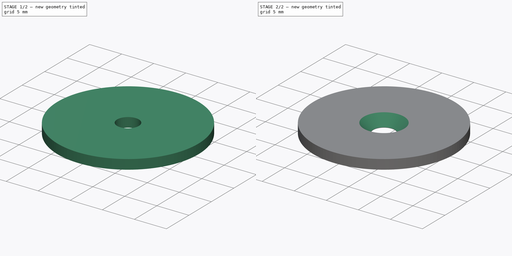
[diagram: build sequence overview — one tinted view per stage of 2, left to right]
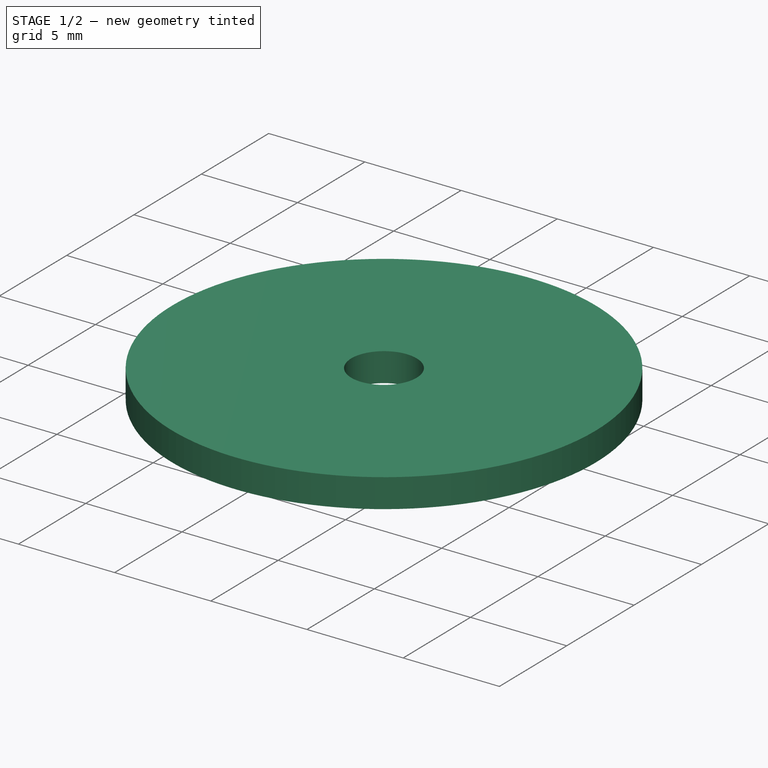
[diagram: stage 1 of 2 — iso view after this stage's code; geometry added in this stage tinted green]
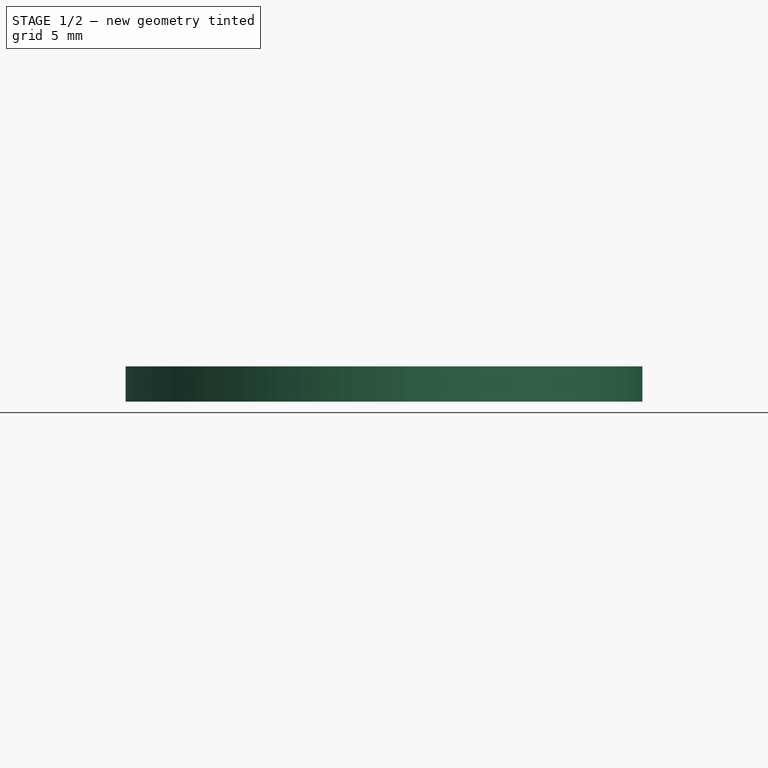
[diagram: stage 1 of 2 — front view after this stage's code; geometry added in this stage tinted green]
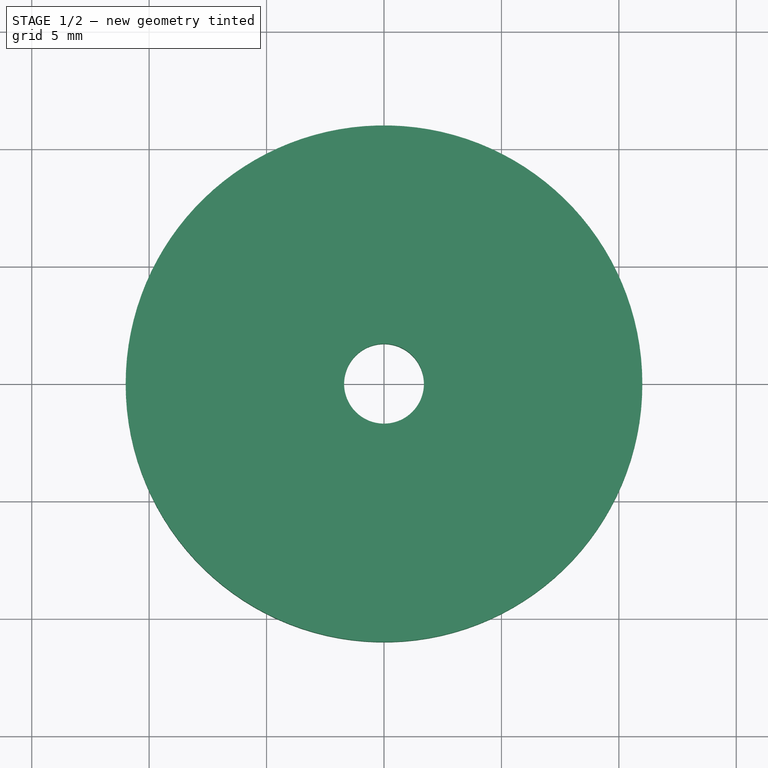
[diagram: stage 1 of 2 — top view after this stage's code; geometry added in this stage tinted green]
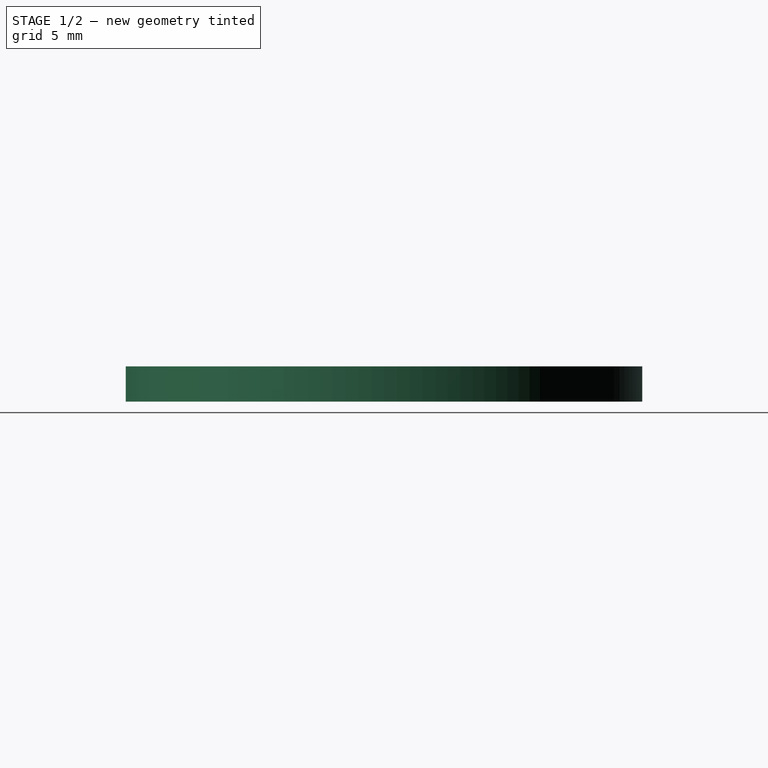
[diagram: stage 1 of 2 — right view after this stage's code; geometry added in this stage tinted green]
FCSTD DOCUMENT  (FreeCAD 0.17R12018 (Git))
Label: bed_leveling_washer_v2.0_PP-MP0082_revA
License: All rights reserved
LicenseURL: http://en.wikipedia.org/wiki/All_rights_reserved
objects: Drawing::FeatureView×21, Drawing::FeatureViewPart×3, Sketcher::SketchObject×1, PartDesign::Pad×1, PartDesign::Chamfer×1, Drawing::FeaturePage×1
note: 4 computed .brp shape members not serialized (recipe doc carries the construction recipe); baked Part::Feature solids carry a one-line shape summary decoded from their .brp

FEATURE [Sketcher::SketchObject] Sketch
  MapMode = 5
  sketch-geometry (2):
    g0: Circle CenterX=0 CenterY=0 CenterZ=0 NormalX=0 NormalY=0 NormalZ=1 Radius=11
    g1: Circle CenterX=0 CenterY=0 CenterZ=0 NormalX=0 NormalY=0 NormalZ=1 Radius=1.7
  constraints (4):
    c: Coincident(g0,g-1)
    c: Radius(g0) = 11
    c: Coincident(g1,g-1)
    c: Radius(g1) = 1.7
FEATURE [PartDesign::Pad] Pad
  Length = 1.5
  Length2 = 100
  Profile = -> Sketch
  Type = 0
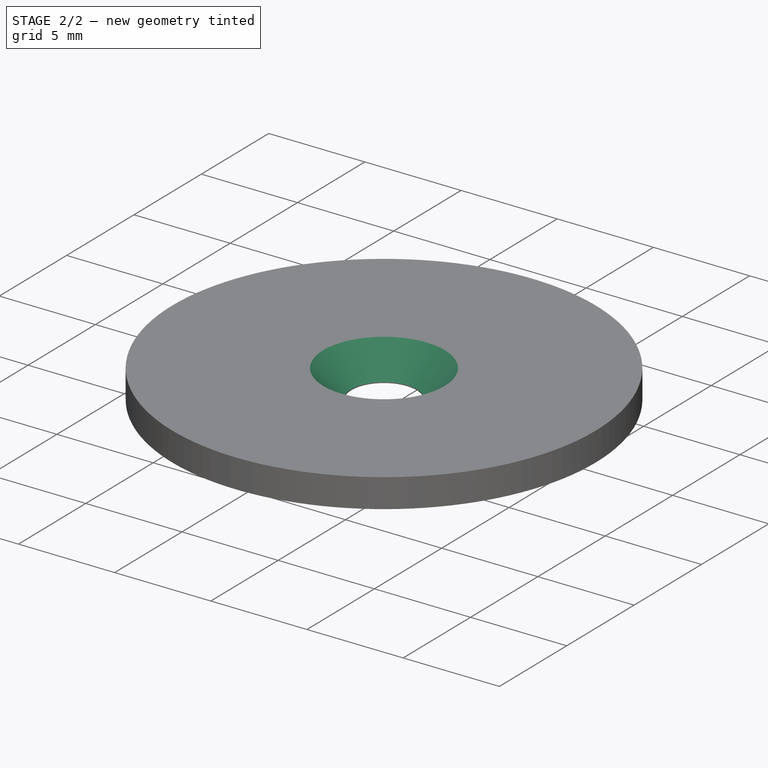
[diagram: stage 2 of 2 — iso view after this stage's code; geometry added in this stage tinted green]
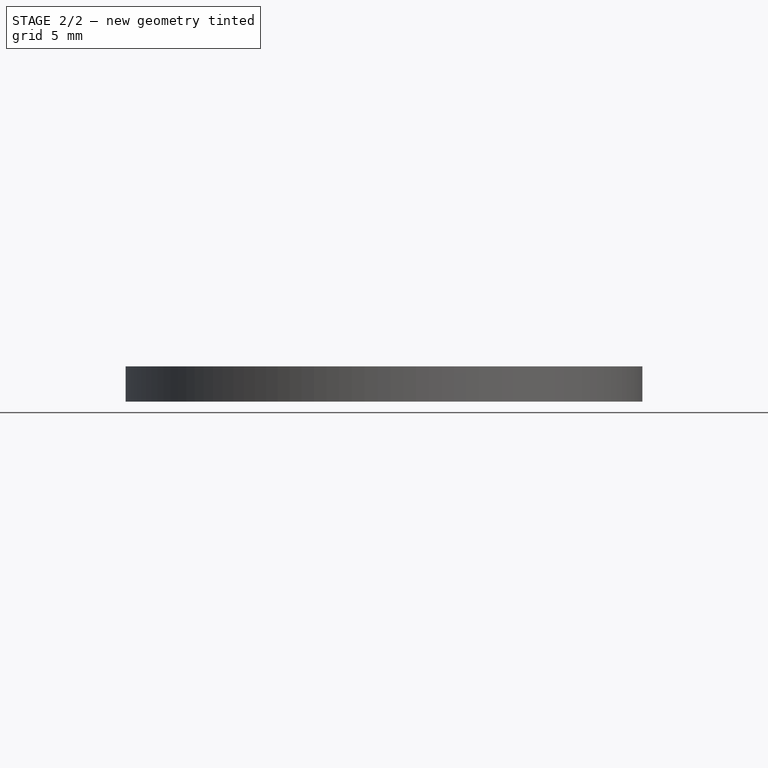
[diagram: stage 2 of 2 — front view after this stage's code; geometry added in this stage tinted green]
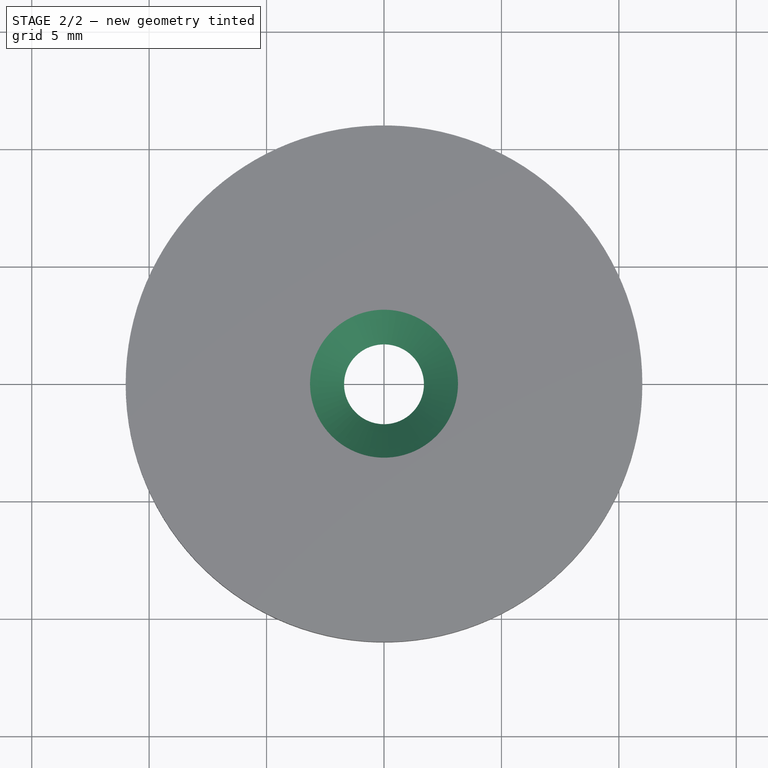
[diagram: stage 2 of 2 — top view after this stage's code; geometry added in this stage tinted green]
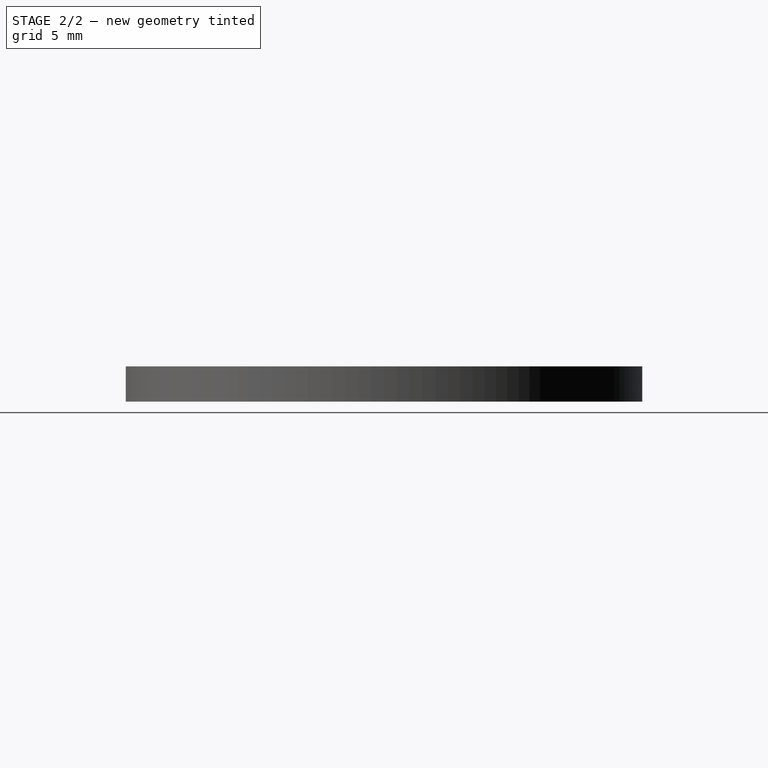
[diagram: stage 2 of 2 — right view after this stage's code; geometry added in this stage tinted green]
FEATURE [PartDesign::Chamfer] Chamfer
  Base = -> Pad [Edge6]
  Size = 1.45
FEATURE [Drawing::FeatureViewPart] Ortho  label="Ortho_0_0"
  Direction = (0,0,1)
  HiddenWidth = 0.15
  LineWidth = 0.35
  Rotation = 0
  Scale = 2
  ShowHiddenLines = false
  ShowSmoothLines = false
  Source = -> Chamfer
  Tolerance = 0.05
  ViewResult = <g id="Ortho_0_0"\n   transform="rotate(0,125,81.5) translate(125,81.5) scale(2,2)"\n  >\n<g   stroke="rgb(0, 0, 0)"\n   stroke-width="0.175"\n   stroke-linecap="butt"\n   stroke-linejoin="miter"\n   fill="none"\n   transform="scale(1,-1)"\n  >\n<circle cx ="0" cy ="0" r ="1.7" /><circle cx ="0" cy ="0" r ="3.15" /><circle cx ="0" cy ="0" r ="11" /></g>\n</g>
  Visible = true
  X = 125
  Y = 81.5
FEATURE [Drawing::FeatureViewPart] Ortho001  label="Ortho_1_0"
  Direction = (1,0,0)
  HiddenWidth = 0.15
  LineWidth = 0.35
  Rotation = 180
  Scale = 2
  ShowHiddenLines = false
  ShowSmoothLines = false
  Source = -> Chamfer
  Tolerance = 0.05
  ViewResult = <g id="Ortho_1_0"\n   transform="rotate(180,201.5,81.5) translate(201.5,81.5) scale(2,2)"\n  >\n<g   stroke="rgb(0, 0, 0)"\n   stroke-width="0.175"\n   stroke-linecap="butt"\n   stroke-linejoin="miter"\n   fill="none"\n   transform="scale(1,-1)"\n  >\n<path id= "1" d=" M 1.5 11 L 0 11 " />\n<path id= "2" d=" M 1.5 -11 L 0 -11 " />\n</g>\n<g   stroke="rgb(0, 0, 0)"\n   stroke-width="0.175"\n   stroke-linecap="butt"\n   stroke-linejoin="miter"\n   fill="none"\n   transform="scale(1,-1)"\n  >\n<path d="M0,0 L0,-1.23161  L0,-2.44773  L0,-3.63307  L0,-4.77272  L0,-5.85235  L0,-6.85839  L0,-7.77817  L0,-8.60015  L0,-9.31397  L0,-9.91066  L0,-10.3827  L0,-10.7242  L0,-10.9308  L0,-11 " /><path d="M0,11 L0,10.9308  L0,10.7242  L0,10.3827  L0,9.91066  L0,9.31397  L0,8.60015  L0,7.77817  L0,6.85839  L0,5.85235  L0,4.77272  L0,3.63307  L0,2.44773  L0,1.23161  L0,2.69422e-15 " /><path d="M1.5,0 L1.5,-1.23161  L1.5,-2.44773  L1.5,-3.63307  L1.5,-4.77272  L1.5,-5.85235  L1.5,-6.85839  L1.5,-7.77817  L1.5,-8.60015  L1.5,-9.31397  L1.5,-9.91066  L1.5,-10.3827  L1.5,-10.7242  L1.5,-10.9308  L1.5,-11 " /><path d="M1.5,11 L1.5,10.9308  L1.5,10.7242  L1.5,10.3827  L1.5,9.91066  L1.5,9.31397  L1.5,8.60015  L1.5,7.77817  L1.5,6.85839  L1.5,5.85235  L1.5,4.77272  L1.5,3.63307  L1.5,2.44773  L1.5,1.23161  L1.5,2.69422e-15 " /></g>\n</g>
  Visible = true
  X = 201.5
  Y = 81.5
FEATURE [Drawing::FeatureViewPart] View
  Direction = (1,1,1)
  HiddenWidth = 0.15
  LineWidth = 0.35
  Rotation = 0
  Scale = 2
  ShowHiddenLines = false
  ShowSmoothLines = false
  Source = -> Chamfer
  Tolerance = 0.05
  ViewResult = <g id="View"\n   transform="rotate(0,50,170) translate(50,170) scale(2,2)"\n  >\n<g   stroke="rgb(0, 0, 0)"\n   stroke-width="0.175"\n   stroke-linecap="butt"\n   stroke-linejoin="miter"\n   fill="none"\n   transform="scale(1,-1)"\n  >\n<path id= "1" d=" M 4.43934 -10.1387 L 5.5 -9.52628 " />\n<path id= "2" d=" M -6.56066 8.91391 L -5.5 9.52628 " />\n</g>\n<g   stroke="rgb(0, 0, 0)"\n   stroke-width="0.175"\n   stroke-linecap="butt"\n   stroke-linejoin="miter"\n   fill="none"\n   transform="scale(1,-1)"\n  >\n<path d="M-0.467604 1.52435 A1.7 0.981495 120 0 1 -0.885355 1.45183" />\n<path d="M-0.885355 1.45183 A1.7 0.981495 120 0 1 0.814645 -1.49266" />\n<path d="M0.814645 -1.49266 A1.7 0.981495 120 0 1 1.08632 -1.16713" />\n<path d="M-0.497421 1.55082 A1.7 0.981495 120 0 1 -0.85 1.47224" />\n<path d="M-0.867494 1.46172 A1.7 0.981495 120 0 1 0.832138 -1.48213" />\n<path d="M0.85 -1.47224 A1.7 0.981495 120 0 1 1.09434 -1.20619" />\n<path d="M1.16673 -1.89835 A3.15 1.81865 120 0 1 -1.06066 1.95959" />\n<path d="M-1.06066 1.95959 A3.15 1.81865 120 1 1 1.16673 -1.89835" />\n<path d="M7.77817 -4.49073 A11 6.35085 120 0 1 -5.5 9.52628" />\n<path d="M5.5 -9.52628 A11 6.35085 120 0 1 7.77817 -4.49073" />\n<path d="M6.71751 -5.1031 A11 6.35085 120 0 1 -6.56066 8.91391" />\n<path d="M-6.56066 8.91391 A11 6.35085 120 0 1 4.43934 -10.1387" />\n<path d="M4.43934 -10.1387 A11 6.35085 120 0 1 6.71751 -5.1031" />\n</g>\n</g>
  Visible = true
  X = 50
  Y = 170
FEATURE [Drawing::FeatureView] dim001
  Rotation = 0
  ViewResult = <g>  <circle cx ="125.000000" cy ="81.500000" r="0.500000" stroke="none" fill="rgb(0,0,255)" /> \n<line x1="95.383239" y1="53.390618" x2="140.957126" y2="96.644970" style="stroke:rgb(0,0,255);stroke-width:0.20" />\n<polygon points="109.042874,66.355030 110.702540,68.964246 111.218845,68.420253 111.735151,67.876260" style="fill:rgb(0,0,255);stroke:rgb(0,0,255);stroke-width:0" />\n<polygon points="140.957126,96.644970 139.297460,94.035754 138.781155,94.579747 138.264849,95.123740" style="fill:rgb(0,0,255);stroke:rgb(0,0,255);stroke-width:0" />\n<line x1="95.383239" y1="53.390618" x2="75.586718" y2="53.390618" style="stroke:rgb(0,0,255);stroke-width:0.20" />\n<text x="81.953801" y="52.480857" font-family="Verdana" font-size="3" fill="rgb(0,0,255)" text-anchor="middle"  >Ø22.0</text> </g>
  Visible = true
  X = 0
  Y = 0
FEATURE [Drawing::FeatureView] dim002
  Rotation = 0
  ViewResult = <g>  <circle cx ="125.000000" cy ="81.500000" r="0.500000" stroke="none" fill="rgb(0,0,255)" /> \n<line x1="93.283608" y1="102.282027" x2="127.843872" y2="79.636565" style="stroke:rgb(0,0,255);stroke-width:0.20" />\n<polygon points="122.156128,83.363435 119.235777,84.380318 119.646828,85.007642 120.057880,85.634967" style="fill:rgb(0,0,255);stroke:rgb(0,0,255);stroke-width:0" />\n<polygon points="127.843872,79.636565 130.764223,78.619682 130.353172,77.992358 129.942120,77.365033" style="fill:rgb(0,0,255);stroke:rgb(0,0,255);stroke-width:0" />\n<line x1="93.283608" y1="102.282027" x2="65.388510" y2="102.282027" style="stroke:rgb(0,0,255);stroke-width:0.20" />\n<text x="79.336059" y="101.282027" font-family="Verdana" font-size="3" fill="rgb(0,0,255)" text-anchor="middle"  >Ø3.40 THRU</text> </g>
  Visible = true
  X = 0
  Y = 0
FEATURE [Drawing::FeatureView] dim003
  Rotation = 0
  ViewResult = <g> \n  <line x1="198.500000" y1="57.500000" x2="198.500000" y2="49.052630" style="stroke:rgb(0,0,255);stroke-width:0.20" />\n<line x1="201.500000" y1="57.500000" x2="201.500000" y2="49.052630" style="stroke:rgb(0,0,255);stroke-width:0.20" />\n<line x1="198.500000" y1="50.052630" x2="201.500000" y2="50.052630" style="stroke:rgb(0,0,255);stroke-width:0.20" /> \n  <polygon points="201.500000,50.052630 204.500000,50.802630 204.500000,50.052630 204.500000,49.302630" style="fill:rgb(0,0,255);stroke:rgb(0,0,255);stroke-width:0" /><polygon points="198.500000,50.052630 195.500000,49.302630 195.500000,50.052630 195.500000,50.802630" style="fill:rgb(0,0,255);stroke:rgb(0,0,255);stroke-width:0" /> \n  <text x="215.366406" y="51.007833" font-family="Verdana" font-size="3" fill="rgb(0,0,255)" text-anchor="middle"  >1.50 +/- 0.05</text> </g>
  Visible = true
  X = 0
  Y = 0
FEATURE [Drawing::FeatureView] dimText001
  Rotation = 0
  ViewResult = <g> <text x="63.509442" y="105.912453" font-family="inherit" font-size="3" fill="rgb(0,0,255)" text-anchor="inherit"  >CSK Ø6.30 X 90DEG</text> </g>
  Visible = true
  X = 0
  Y = 0
FEATURE [Drawing::FeatureView] dimText002
  Rotation = 0
  ViewResult = <g> <text x="215.000000" y="125.000000" font-family="inherit" font-size="4" fill="rgb(0,0,0)" text-anchor="inherit" transform="rotate(0.000000 215.000000,125.000000)" >Notes:</text> </g>
  Visible = true
  X = 0
  Y = 0
FEATURE [Drawing::FeatureView] dimText003
  Rotation = 0
  ViewResult = <g> <text x="215.000000" y="130.000000" font-family="inherit" font-size="3" fill="rgb(0,0,0)" text-anchor="inherit" transform="rotate(0.000000 215.000000,130.000000)" >1. Parts must be RoHS compliant.</text> </g>
  Visible = true
  X = 0
  Y = 0
FEATURE [Drawing::FeatureView] dimText004
  Rotation = 0
  ViewResult = <g> <text x="215.000000" y="135.000000" font-family="inherit" font-size="3" fill="rgb(0,0,0)" text-anchor="inherit" transform="rotate(0.000000 215.000000,135.000000)" >2. Material: 303 SST</text> </g>
  Visible = true
  X = 0
  Y = 0
FEATURE [Drawing::FeatureView] centerLines001
  Rotation = 0
  ViewResult = <g transform="scale(2.000000,2.000000)" stroke="rgb(0,0,255)"  stroke-width="0.160000" > <path d="M 62.500000,40.750000 L 62.500000,39.250000 M 62.500000,38.250000 L 62.500000,35.250000 M 62.500000,34.250000 L 62.500000,32.750000 M 62.500000,31.750000 L 62.500000,28.750000 M 62.500000,27.750000 L 62.500000,26.250000 M 62.500000,25.250000 L 62.500000,22.250000 M 62.500000,21.250000 L 62.500000,20.000000 "/>\n<path d="M 62.500000,40.750000 L 61.000000,40.750000 M 60.000000,40.750000 L 57.000000,40.750000 M 56.000000,40.750000 L 54.500000,40.750000 M 53.500000,40.750000 L 50.500000,40.750000 M 49.500000,40.750000 L 48.000000,40.750000 M 47.000000,40.750000 L 44.000000,40.750000 M 43.000000,40.750000 L 42.500000,40.750000 "/>\n<path d="M 62.500000,40.750000 L 62.500000,42.250000 M 62.500000,43.250000 L 62.500000,46.250000 M 62.500000,47.250000 L 62.500000,48.750000 M 62.500000,49.750000 L 62.500000,52.750000 M 62.500000,53.750000 L 62.500000,55.250000 M 62.500000,56.250000 L 62.500000,57.500000 "/>\n<path d="M 62.500000,40.750000 L 64.000000,40.750000 M 65.000000,40.750000 L 68.000000,40.750000 M 69.000000,40.750000 L 70.500000,40.750000 M 71.500000,40.750000 L 74.500000,40.750000 M 75.500000,40.750000 L 77.000000,40.750000 M 78.000000,40.750000 L 81.000000,40.750000 M 82.000000,40.750000 L 83.500000,40.750000 M 84.500000,40.750000 L 85.000000,40.750000 "/> </g> 
  Visible = true
  X = 0
  Y = 0
FEATURE [Drawing::FeatureView] centerLines002
  Rotation = 0
  ViewResult = <g transform="scale(2.000000,2.000000)" stroke="rgb(0,0,255)"  stroke-width="0.160000" > <path d="M 99.250000,40.750000 L 97.750000,40.750000 M 96.750000,40.750000 L 93.750000,40.750000 M 92.750000,40.750000 L 92.500000,40.750000 "/>\n<path d="M 99.250000,40.750000 L 100.750000,40.750000 M 101.750000,40.750000 L 104.750000,40.750000 M 105.750000,40.750000 L 107.250000,40.750000 "/> </g> 
  Visible = true
  X = 0
  Y = 0
FEATURE [Drawing::FeatureView] dimText005
  Rotation = 0
  ViewResult = <g> <text x="10.000000" y="15.000000" font-family="inherit" font-size="5" fill="rgb(0,0,0)" text-anchor="inherit" transform="rotate(0.000000 10.000000,15.000000)" >REVISION HISTORY</text> </g>
  Visible = true
  X = 0
  Y = 0
FEATURE [Drawing::FeatureView] dimText006
  Rotation = 0
  ViewResult = <g> <text x="10.000000" y="20.000000" font-family="inherit" font-size="5" fill="rgb(0,0,0)" text-anchor="inherit" transform="rotate(0.000000 10.000000,20.000000)" >REV</text> </g>
  Visible = true
  X = 0
  Y = 0
FEATURE [Drawing::FeatureView] dimText007
  Rotation = 0
  ViewResult = <g> <text x="25.000000" y="20.000000" font-family="inherit" font-size="5" fill="rgb(0,0,0)" text-anchor="inherit" transform="rotate(0.000000 25.000000,20.000000)" >DATE</text> </g>
  Visible = true
  X = 0
  Y = 0
FEATURE [Drawing::FeatureView] dimText008
  Rotation = 0
  ViewResult = <g> <text x="50.000000" y="20.000000" font-family="inherit" font-size="5" fill="rgb(0,0,0)" text-anchor="inherit" transform="rotate(0.000000 50.000000,20.000000)" >INIT</text> </g>
  Visible = true
  X = 0
  Y = 0
FEATURE [Drawing::FeatureView] dimText009
  Rotation = 0
  ViewResult = <g> <text x="65.000000" y="20.000000" font-family="inherit" font-size="5" fill="rgb(0,0,0)" text-anchor="inherit" transform="rotate(0.000000 65.000000,20.000000)" >NOTES</text> </g>
  Visible = true
  X = 0
  Y = 0
FEATURE [Drawing::FeatureView] dimText010
  Rotation = 0
  ViewResult = <g> <text x="10.000000" y="25.000000" font-family="inherit" font-size="5" fill="rgb(0,0,0)" text-anchor="inherit" transform="rotate(0.000000 10.000000,25.000000)" >IR</text> </g>
  Visible = true
  X = 0
  Y = 0
FEATURE [Drawing::FeatureView] dimText011
  Rotation = 0
  ViewResult = <g> <text x="10.000000" y="30.000000" font-family="inherit" font-size="5" fill="rgb(0,0,0)" text-anchor="inherit" transform="rotate(0.000000 10.000000,30.000000)" >A</text> </g>
  Visible = true
  X = 0
  Y = 0
FEATURE [Drawing::FeatureView] dimText012
  Rotation = 0
  ViewResult = <g> <text x="25.000000" y="25.000000" font-family="inherit" font-size="5" fill="rgb(0,0,0)" text-anchor="inherit" transform="rotate(0.000000 25.000000,25.000000)" >11/17/15</text> </g>
  Visible = true
  X = 0
  Y = 0
FEATURE [Drawing::FeatureView] dimText013
  Rotation = 0
  ViewResult = <g> <text x="25.000000" y="30.000000" font-family="inherit" font-size="5" fill="rgb(0,0,0)" text-anchor="inherit" transform="rotate(0.000000 25.000000,30.000000)" >11/17/17</text> </g>
  Visible = true
  X = 0
  Y = 0
FEATURE [Drawing::FeatureView] dimText014
  Rotation = 0
  ViewResult = <g> <text x="50.000000" y="25.000000" font-family="inherit" font-size="5" fill="rgb(0,0,0)" text-anchor="inherit" transform="rotate(0.000000 50.000000,25.000000)" >BAM</text> </g>
  Visible = true
  X = 0
  Y = 0
FEATURE [Drawing::FeatureView] dimText015
  Rotation = 0
  ViewResult = <g> <text x="50.000000" y="30.000000" font-family="inherit" font-size="5" fill="rgb(0,0,0)" text-anchor="inherit" transform="rotate(0.000000 50.000000,30.000000)" >SAW</text> </g>
  Visible = true
  X = 0
  Y = 0
FEATURE [Drawing::FeatureView] dimText016
  Rotation = 0
  ViewResult = <g> <text x="65.000000" y="30.000000" font-family="inherit" font-size="4" fill="rgb(0,0,0)" text-anchor="inherit" transform="rotate(0.000000 65.000000,30.000000)" >Added center lines</text> </g>
  Visible = true
  X = 0
  Y = 0
FEATURE [Drawing::FeaturePage] Page
  EditableTexts = BAM | 11/17/15 | NA | Bed Leveling Washer v2.0 | A | PP-MP0082 | 1 of 1 | See Notes
  Group = -> [Ortho,Ortho001,View,dim001,dim002,dim003,dimText001,dimText002,dimText003,dimText004,centerLines001,centerLines002,dimText005,dimText006,dimText007,dimText008,dimText009,dimText010,dimText011,dimText012,dimText013,dimText014,dimText015,dimText016]
  Template = <userpath>/shared-j/Documents/R&D/titleblocks/A4_Landscape_Aleph.svg
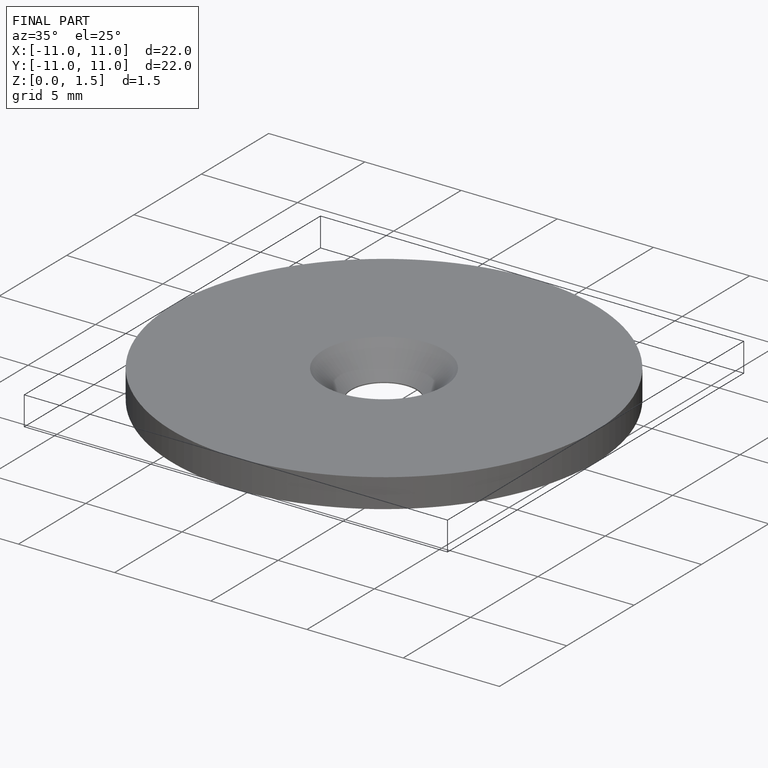
[diagram: finished part — iso view with bounding-box wireframe]
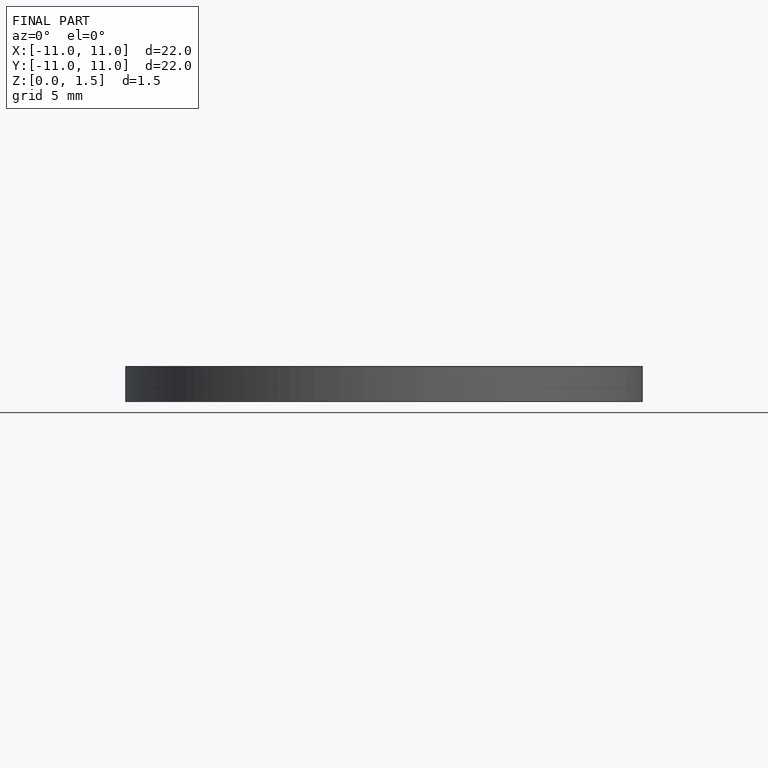
[diagram: finished part — front view with bounding-box wireframe]
